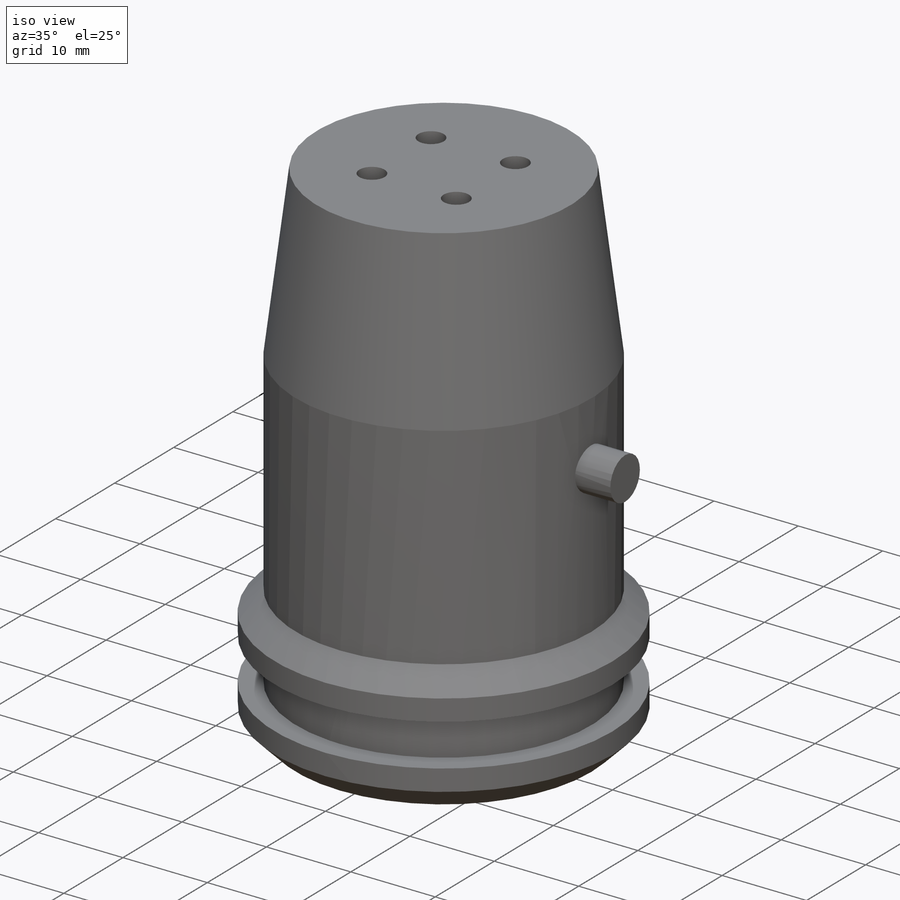
[diagram: iso view]
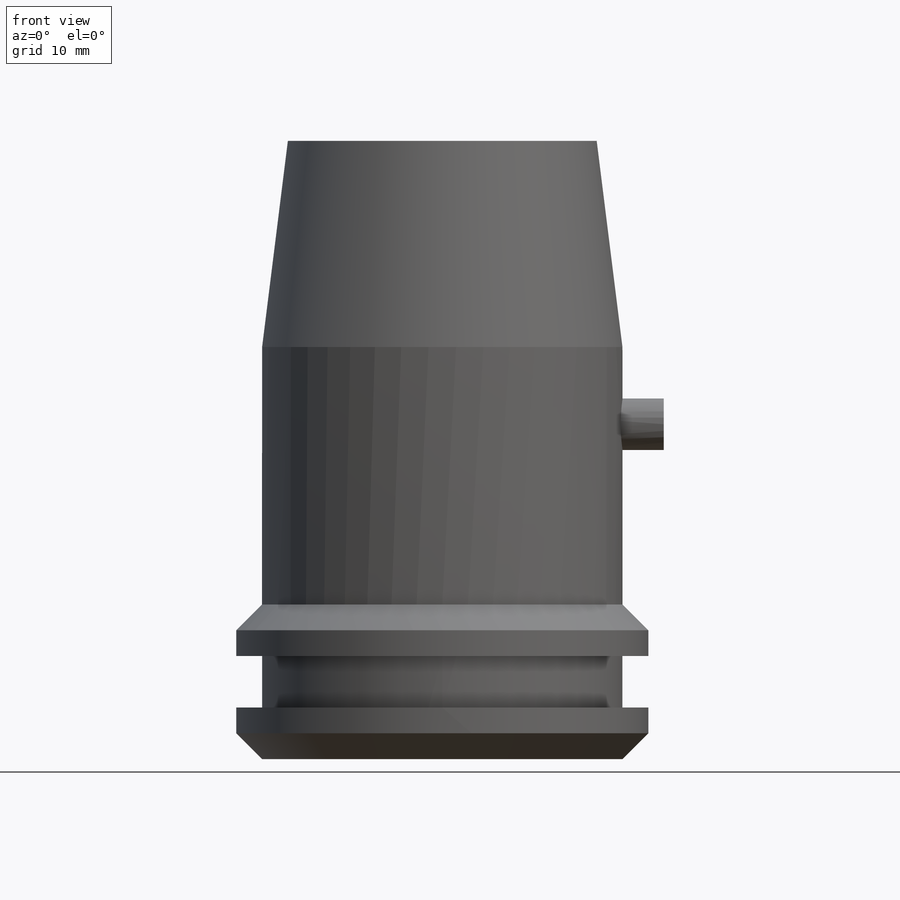
[diagram: front view]
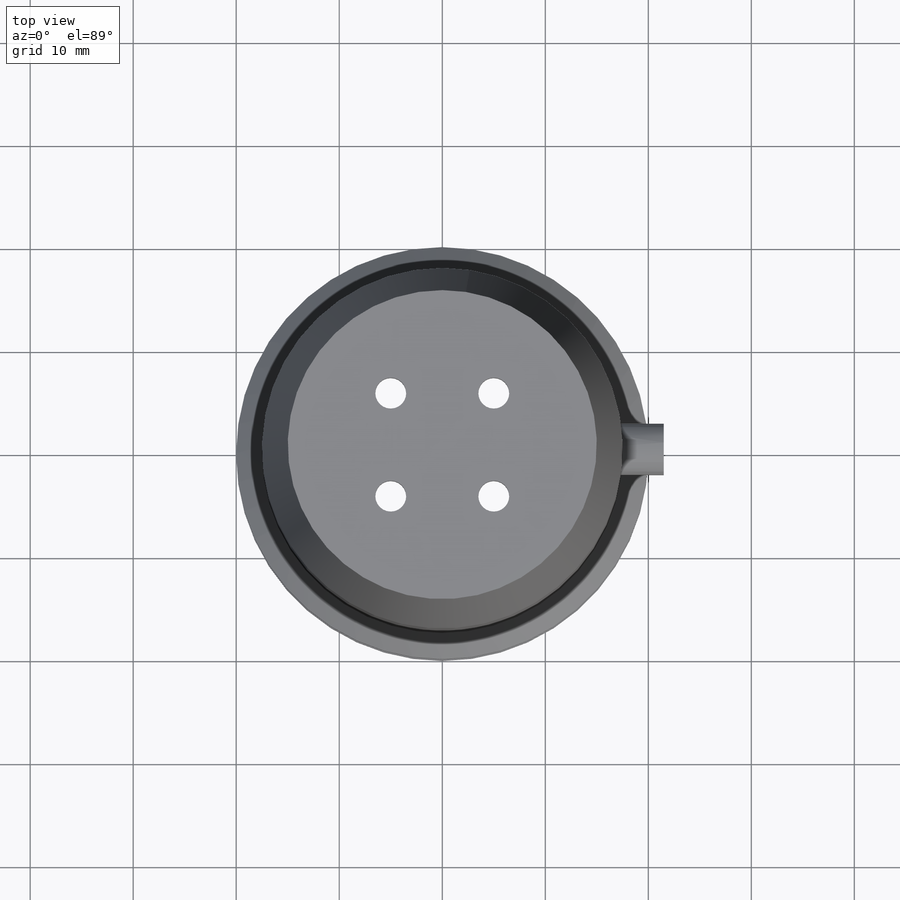
[diagram: top view]
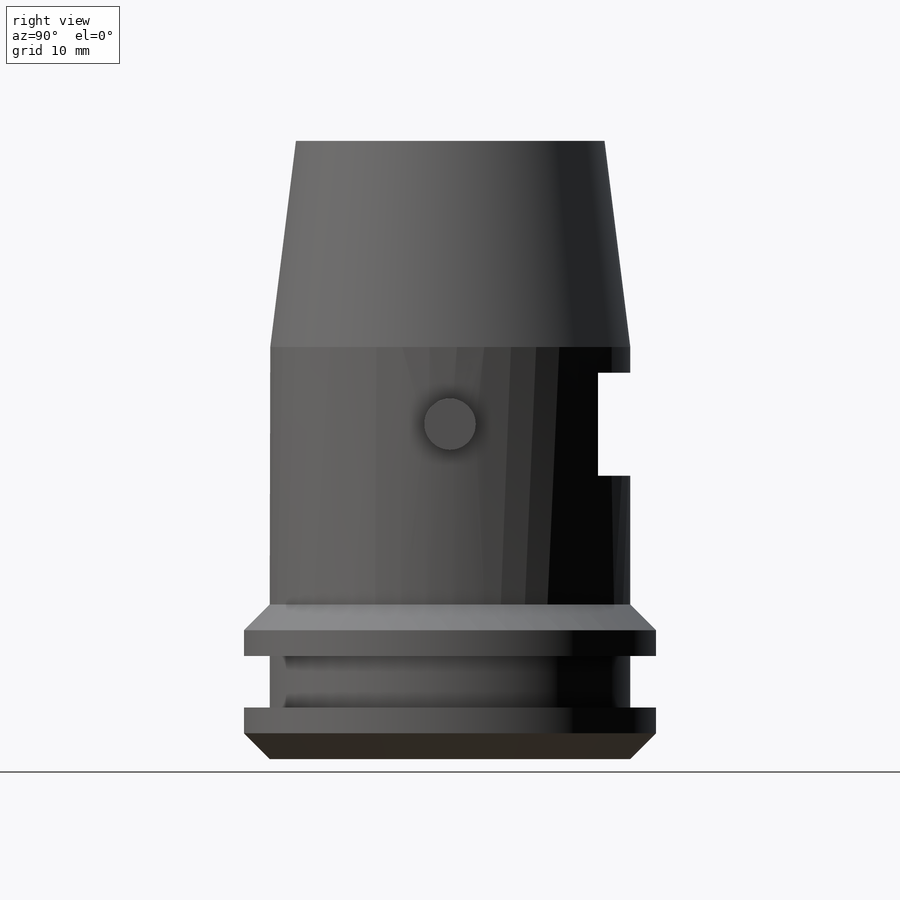
[diagram: right view]
SOLIDWORKS PART (.sldprt)
format: sldprt  version: not decoded by parser v0  size: 246,784 bytes
history: native  units: mm
features: sketch x6, plane x3, extrude x3, cut_extrude x2, material x1, revolve x1, pattern_circular x1, chamfer x1 (+13 scaffold rows collapsed)
feature tree (31):
  scaffold x13  (default folders/planes/origin — collapsed)
  material  "Material <not specified>"
  sketch  "Sketch1"  dims[c1.D1=40.0mm c1.D2=25.0mm c1.D3=60.0mm c1.D4=40.0mm c2.D1=35.0mm c2.D2=3.0mm c2.D5=30.0mm]
  revolve  "Revolve1"  Angle=360deg
  plane  "Plane1"  Offset=14mm
  sketch  "Sketch2"  dims[D1=5.0mm D2=32.5mm]
  extrude  "Boss-Extrude1"  Depth=7.5mm
  plane  "Plane2"  Offset=5mm
  sketch  "Sketch4"  dims[D1=40.0mm]
  extrude  "Boss-Extrude3"  Depth=2.5mm
  plane  "Plane3"  Offset=10mm
  sketch  "Sketch5"  dims[D1=0.0mm D2=0.0mm]
  extrude  "Boss-Extrude4"  Depth=2.5mm
  sketch  "Sketch6"  dims[c1.D1=3.0mm c1.D2=5.0mm c1.D3=5.0mm c2.D2=5.0mm c2.D3=5.0mm]
  cut_extrude  "Cut-Extrude1"  [1 undecoded]
  pattern_circular  "CirPattern1"  Count=4 Angle=90deg
  sketch  "Sketch7"  dims[D1=20.0mm D2=10.0mm D3=27.5mm]
  cut_extrude  "Cut-Extrude2"  [1 undecoded]
  chamfer  "Chamfer1"  Distance=2.5mm Angle=45deg
decode coverage: 12 of 14 modeling features carry decoded parameters
note: 2 parameter values undecoded
note: suppression state not decoded; provenance and decode notes live in map.json
